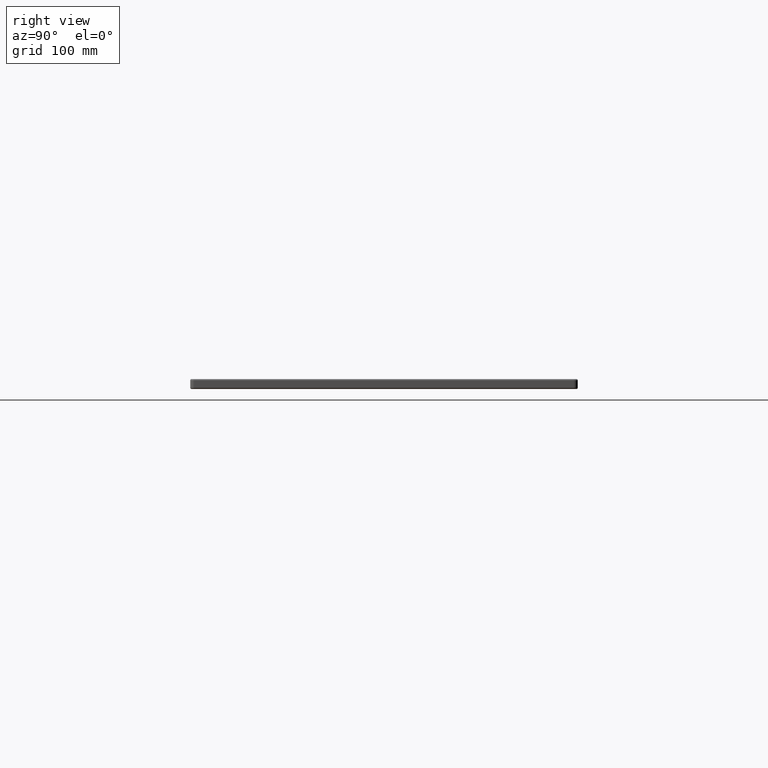
[diagram: clean part render]
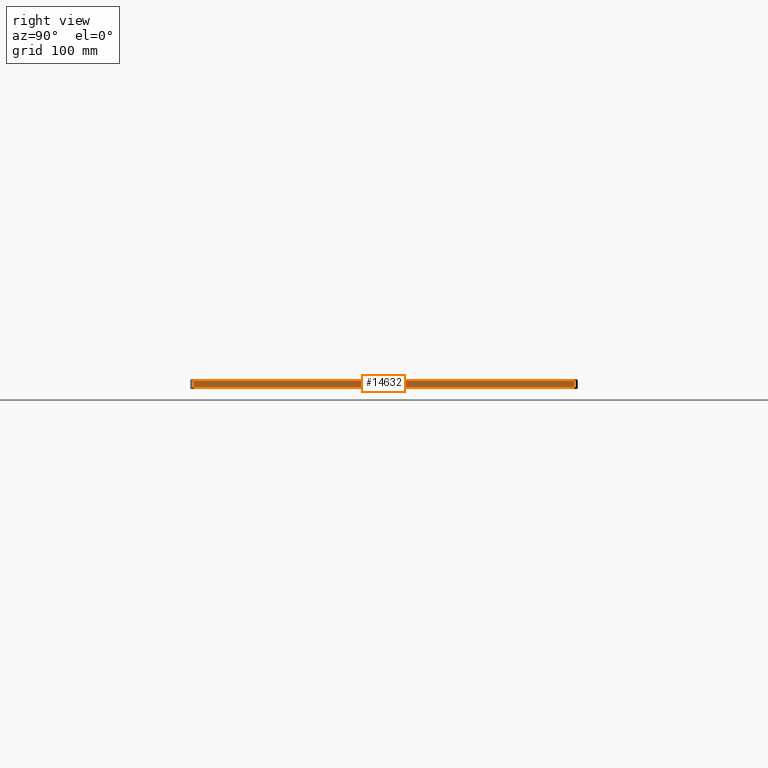
[diagram: same view with one face highlighted and labeled with its STEP entity id]
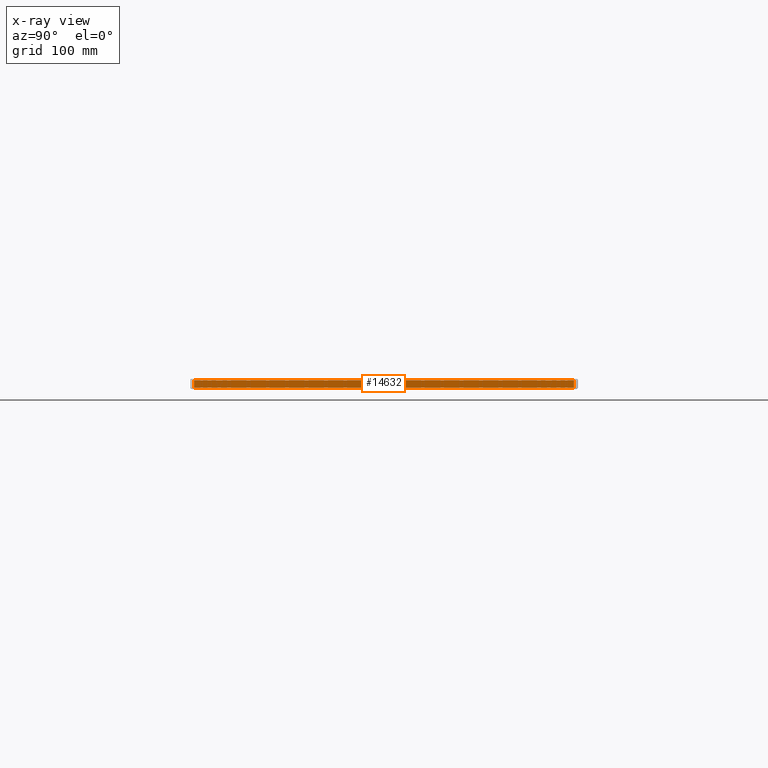
[diagram: x-ray of the same camera — body ghosted, the highlighted face saturated]
A machine part, right view. The second image highlights one B-rep face of the part: STEP entity #14632.
The next image is the same camera in x-ray: the body ghosted, the highlighted face saturated — about 0% of this face is hidden behind the body in this view.
In plain terms, the highlighted planar face has unit normal (1, 0, 0).
Its self-contained STEP definition (entity closure, byte-faithful):
#429 = DIRECTION ( 'NONE',  ( -0.0000000000000000000, -1.000000000000000000, 0.0000000000000000000 ) ) ;
#475 = LINE ( 'NONE', #23421, #21172 ) ;
#2630 = CARTESIAN_POINT ( 'NONE',  ( 800.0000000000000000, 4.999999999999999100, -11.00000000000000000 ) ) ;
#2707 = CARTESIAN_POINT ( 'NONE',  ( 800.0000000000000000, 495.0000000000000000, -11.00000000000000000 ) ) ;
#2708 = ORIENTED_EDGE ( 'NONE', *, *, #11072, .T. ) ;
#5221 = ORIENTED_EDGE ( 'NONE', *, *, #13123, .T. ) ;
#6101 = CARTESIAN_POINT ( 'NONE',  ( 800.0000000000000000, 495.0000000000000000, -13.00000000000000000 ) ) ;
#7241 = CARTESIAN_POINT ( 'NONE',  ( 800.0000000000000000, 495.0000000000000000, -2.000000000000000000 ) ) ;
#9615 = EDGE_LOOP ( 'NONE', ( #2708, #29749, #5221, #15184 ) ) ;
#11072 = EDGE_CURVE ( 'NONE', #43128, #31586, #28761, .T. ) ;
#12342 = FACE_OUTER_BOUND ( 'NONE', #9615, .T. ) ;
#13016 = AXIS2_PLACEMENT_3D ( 'NONE', #36504, #15631, #19292 ) ;
#13123 = EDGE_CURVE ( 'NONE', #21391, #25939, #22260, .T. ) ;
#13414 = EDGE_CURVE ( 'NONE', #25939, #43128, #38610, .T. ) ;
#13514 = VECTOR ( 'NONE', #26962, 1000.000000000000000 ) ;
#14632 = ADVANCED_FACE ( 'NONE', ( #12342 ), #29506, .T. ) ;
#15184 = ORIENTED_EDGE ( 'NONE', *, *, #13414, .T. ) ;
#15631 = DIRECTION ( 'NONE',  ( 1.000000000000000000, 0.0000000000000000000, 0.0000000000000000000 ) ) ;
#18416 = DIRECTION ( 'NONE',  ( 0.0000000000000000000, -0.0000000000000000000, -1.000000000000000000 ) ) ;
#19292 = DIRECTION ( 'NONE',  ( 0.0000000000000000000, 0.0000000000000000000, -1.000000000000000000 ) ) ;
#21172 = VECTOR ( 'NONE', #37919, 1000.000000000000000 ) ;
#21391 = VERTEX_POINT ( 'NONE', #2707 ) ;
#22260 = LINE ( 'NONE', #6101, #13514 ) ;
#22534 = EDGE_CURVE ( 'NONE', #31586, #21391, #475, .T. ) ;
#23421 = CARTESIAN_POINT ( 'NONE',  ( 800.0000000000000000, 0.0000000000000000000, -11.00000000000000000 ) ) ;
#25939 = VERTEX_POINT ( 'NONE', #7241 ) ;
#26962 = DIRECTION ( 'NONE',  ( 0.0000000000000000000, 0.0000000000000000000, 1.000000000000000000 ) ) ;
#28761 = LINE ( 'NONE', #35603, #39128 ) ;
#29506 = PLANE ( 'NONE',  #13016 ) ;
#29749 = ORIENTED_EDGE ( 'NONE', *, *, #22534, .T. ) ;
#31586 = VERTEX_POINT ( 'NONE', #2630 ) ;
#35603 = CARTESIAN_POINT ( 'NONE',  ( 800.0000000000000000, 4.999999999999999100, -13.00000000000000000 ) ) ;
#36504 = CARTESIAN_POINT ( 'NONE',  ( 800.0000000000000000, 0.0000000000000000000, -13.00000000000000000 ) ) ;
#37919 = DIRECTION ( 'NONE',  ( -0.0000000000000000000, 1.000000000000000000, 0.0000000000000000000 ) ) ;
#38610 = LINE ( 'NONE', #42182, #40796 ) ;
#39128 = VECTOR ( 'NONE', #18416, 1000.000000000000000 ) ;
#40796 = VECTOR ( 'NONE', #429, 1000.000000000000000 ) ;
#41982 = CARTESIAN_POINT ( 'NONE',  ( 800.0000000000000000, 4.999999999999999100, -2.000000000000000000 ) ) ;
#42182 = CARTESIAN_POINT ( 'NONE',  ( 800.0000000000000000, 5.000000000000004400, -2.000000000000000000 ) ) ;
#43128 = VERTEX_POINT ( 'NONE', #41982 ) ;